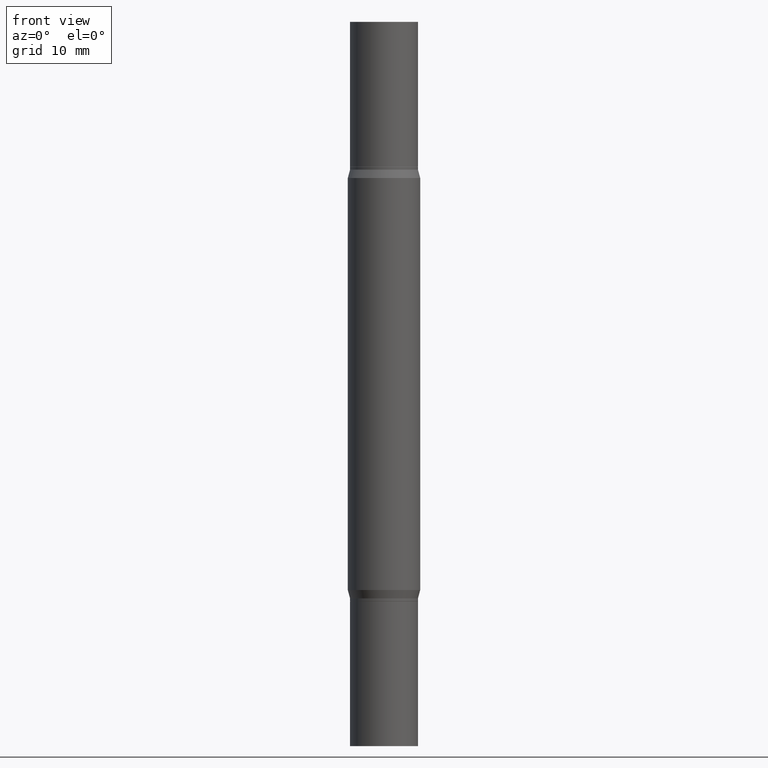
[diagram: clean part render]
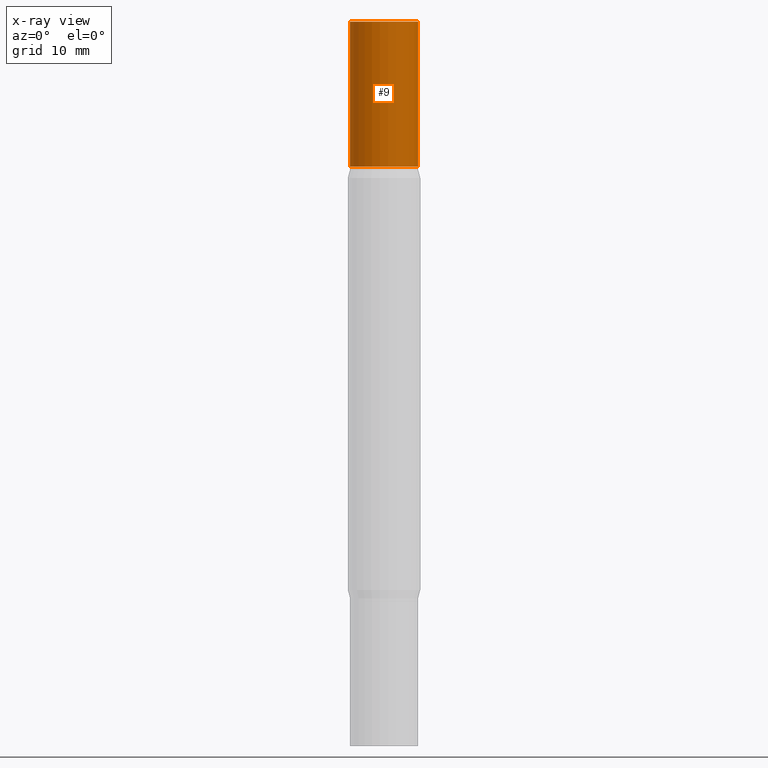
[diagram: x-ray — body ghosted, one internal face saturated and labeled with its STEP entity id]
A machine part, front view, then the same camera in x-ray: the body is ghosted and one INTERNAL B-rep face — a face not visible from any outside direction — is saturated and labeled: STEP entity #9.
In plain terms, the highlighted cylindrical surface (edge-blend (fillet) strip) has radius 2.9769 mm, axis along (-0, -0, -1).
Its self-contained STEP definition (entity closure, byte-faithful):
#9 = ADVANCED_FACE ( 'NONE', ( #450 ), #237, .T. ) ;
#70 = EDGE_CURVE ( 'NONE', #642, #97, #973, .T. ) ;
#84 = CARTESIAN_POINT ( 'NONE',  ( -0.1171999999999999986, -6.849621325398194571E-17, 5.463695987328557991E-16 ) ) ;
#86 = CARTESIAN_POINT ( 'NONE',  ( 0.1171999999999999986, -2.563901078157915826E-15, -0.4999999999999993339 ) ) ;
#97 = VERTEX_POINT ( 'NONE', #86 ) ;
#144 = VERTEX_POINT ( 'NONE', #632 ) ;
#219 = CARTESIAN_POINT ( 'NONE',  ( -0.1171999999999999986, -7.925057676916510614E-15, -2.499999999999999556 ) ) ;
#220 = CARTESIAN_POINT ( 'NONE',  ( 0.000000000000000000, -8.729108042255335103E-15, -2.499999999999999556 ) ) ;
#234 = EDGE_CURVE ( 'NONE', #144, #97, #962, .T. ) ;
#237 = CYLINDRICAL_SURFACE ( 'NONE', #682, 0.1171999999999999986 ) ;
#239 = VECTOR ( 'NONE', #902, 39.37007874015748143 ) ;
#252 = AXIS2_PLACEMENT_3D ( 'NONE', #283, #265, #428 ) ;
#264 = DIRECTION ( 'NONE',  ( 1.000000000000000000, -6.982962677686266711E-15, 0.000000000000000000 ) ) ;
#265 = DIRECTION ( 'NONE',  ( 2.445468806185136597E-29, 3.491805094961124077E-15, 1.000000000000000000 ) ) ;
#276 = DIRECTION ( 'NONE',  ( 2.445468806185136597E-29, 3.491805094961124077E-15, 1.000000000000000000 ) ) ;
#283 = CARTESIAN_POINT ( 'NONE',  ( 4.890937612370273754E-29, -1.745497852333085568E-15, -0.4999999999999993339 ) ) ;
#299 = CARTESIAN_POINT ( 'NONE',  ( 0.1171999999999999986, -9.547511268080165952E-15, -2.499999999999999556 ) ) ;
#322 = ORIENTED_EDGE ( 'NONE', *, *, #234, .T. ) ;
#373 = ORIENTED_EDGE ( 'NONE', *, *, #676, .F. ) ;
#379 = DIRECTION ( 'NONE',  ( -2.445468806185136597E-29, -3.491805094961124077E-15, -1.000000000000000000 ) ) ;
#386 = EDGE_LOOP ( 'NONE', ( #373, #542, #322, #431 ) ) ;
#399 = EDGE_CURVE ( 'NONE', #980, #144, #518, .T. ) ;
#428 = DIRECTION ( 'NONE',  ( 1.000000000000000000, -6.982962677686265922E-15, 0.000000000000000000 ) ) ;
#431 = ORIENTED_EDGE ( 'NONE', *, *, #70, .F. ) ;
#450 = FACE_OUTER_BOUND ( 'NONE', #386, .T. ) ;
#518 = LINE ( 'NONE', #219, #716 ) ;
#519 = DIRECTION ( 'NONE',  ( 1.000000000000000000, -6.982962677686269866E-15, 0.000000000000000000 ) ) ;
#542 = ORIENTED_EDGE ( 'NONE', *, *, #399, .T. ) ;
#632 = CARTESIAN_POINT ( 'NONE',  ( -0.1171999999999999986, -6.849621325398205664E-17, -0.4999999999999993339 ) ) ;
#642 = VERTEX_POINT ( 'NONE', #713 ) ;
#676 = EDGE_CURVE ( 'NONE', #980, #642, #809, .T. ) ;
#682 = AXIS2_PLACEMENT_3D ( 'NONE', #220, #379, #519 ) ;
#713 = CARTESIAN_POINT ( 'NONE',  ( 0.1171999999999999986, -8.179985306773559567E-16, 5.463695987328526437E-16 ) ) ;
#716 = VECTOR ( 'NONE', #819, 39.37007874015748143 ) ;
#809 = CIRCLE ( 'NONE', #932, 0.1171999999999999986 ) ;
#819 = DIRECTION ( 'NONE',  ( -2.445468806185136877E-29, -3.491805094961123683E-15, -1.000000000000000000 ) ) ;
#902 = DIRECTION ( 'NONE',  ( -2.445468806185136877E-29, -3.491805094961123683E-15, -1.000000000000000000 ) ) ;
#924 = CARTESIAN_POINT ( 'NONE',  ( 6.113672015462842613E-29, 4.046951474745467748E-19, 5.463695987328526437E-16 ) ) ;
#932 = AXIS2_PLACEMENT_3D ( 'NONE', #924, #276, #264 ) ;
#962 = CIRCLE ( 'NONE', #252, 0.1171999999999999986 ) ;
#973 = LINE ( 'NONE', #299, #239 ) ;
#980 = VERTEX_POINT ( 'NONE', #84 ) ;